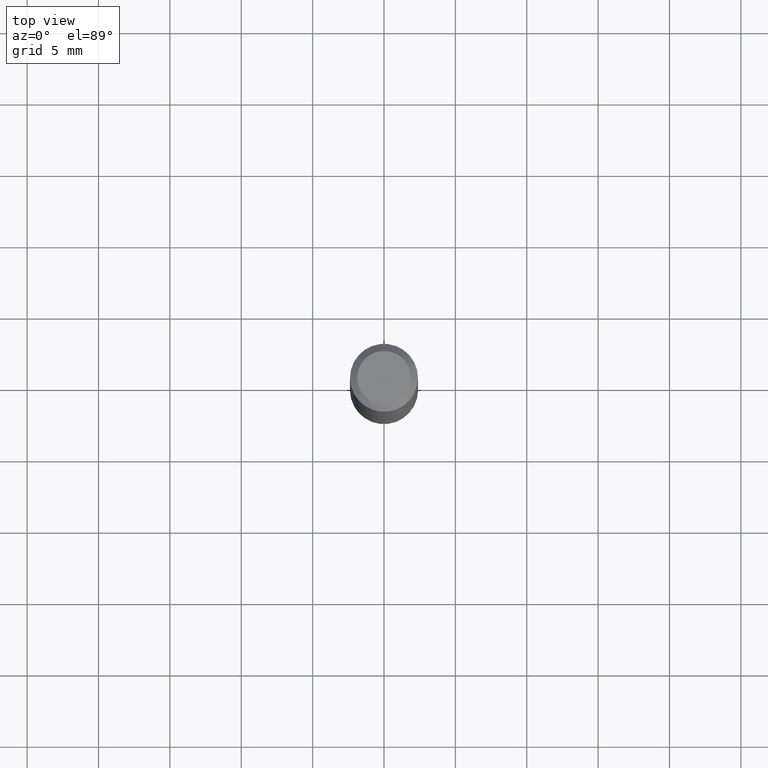
[diagram: clean part render]
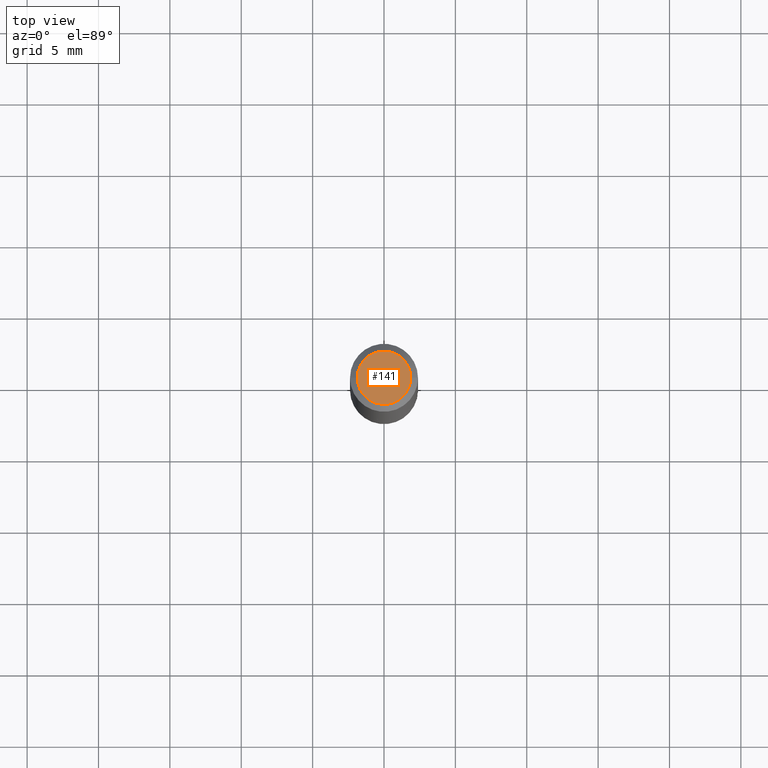
[diagram: same view with one face highlighted and labeled with its STEP entity id]
A machine part, top view. The second image highlights one B-rep face of the part: STEP entity #141.
In plain terms, the highlighted planar face has unit normal (0, -0, -1).
Its self-contained STEP definition (entity closure, byte-faithful):
#6 = PLANE ( 'NONE',  #85 ) ;
#23 = AXIS2_PLACEMENT_3D ( 'NONE', #437, #161, #29 ) ;
#29 = DIRECTION ( 'NONE',  ( 1.000000000000000000, -6.982962677686266711E-15, 4.876176775795935793E-29 ) ) ;
#44 = AXIS2_PLACEMENT_3D ( 'NONE', #197, #136, #369 ) ;
#68 = DIRECTION ( 'NONE',  ( 2.438088387897960049E-29, -3.491481338843145188E-15, -1.000000000000000000 ) ) ;
#85 = AXIS2_PLACEMENT_3D ( 'NONE', #245, #68, #282 ) ;
#95 = VERTEX_POINT ( 'NONE', #349 ) ;
#136 = DIRECTION ( 'NONE',  ( -2.445468806185136597E-29, 3.491481338843145583E-15, 1.000000000000000000 ) ) ;
#141 = ADVANCED_FACE ( 'NONE', ( #317 ), #6, .F. ) ;
#161 = DIRECTION ( 'NONE',  ( -2.445468806185136597E-29, 3.491481338843145583E-15, 1.000000000000000000 ) ) ;
#170 = CIRCLE ( 'NONE', #23, 0.07374999999999984346 ) ;
#197 = CARTESIAN_POINT ( 'NONE',  ( 0.000000000000000000, 0.000000000000000000, 0.000000000000000000 ) ) ;
#230 = VERTEX_POINT ( 'NONE', #306 ) ;
#245 = CARTESIAN_POINT ( 'NONE',  ( 5.149934974793610063E-16, 0.07374999999999984346, -2.574967487396814399E-16 ) ) ;
#257 = EDGE_CURVE ( 'NONE', #230, #95, #170, .T. ) ;
#264 = EDGE_CURVE ( 'NONE', #95, #230, #440, .T. ) ;
#271 = ORIENTED_EDGE ( 'NONE', *, *, #264, .T. ) ;
#275 = ORIENTED_EDGE ( 'NONE', *, *, #257, .T. ) ;
#282 = DIRECTION ( 'NONE',  ( -1.000000000000000000, 6.982962677686265922E-15, -4.876176775795935793E-29 ) ) ;
#306 = CARTESIAN_POINT ( 'NONE',  ( -0.07374999999999984346, 5.499083108677921624E-16, -3.723527850031186263E-30 ) ) ;
#317 = FACE_OUTER_BOUND ( 'NONE', #398, .T. ) ;
#349 = CARTESIAN_POINT ( 'NONE',  ( 0.07374999999999984346, -6.094815207017961198E-16, 3.931526600461598749E-30 ) ) ;
#369 = DIRECTION ( 'NONE',  ( 1.000000000000000000, -6.982962677686266711E-15, 4.876176775795935793E-29 ) ) ;
#398 = EDGE_LOOP ( 'NONE', ( #275, #271 ) ) ;
#437 = CARTESIAN_POINT ( 'NONE',  ( 0.000000000000000000, 0.000000000000000000, 0.000000000000000000 ) ) ;
#440 = CIRCLE ( 'NONE', #44, 0.07374999999999984346 ) ;